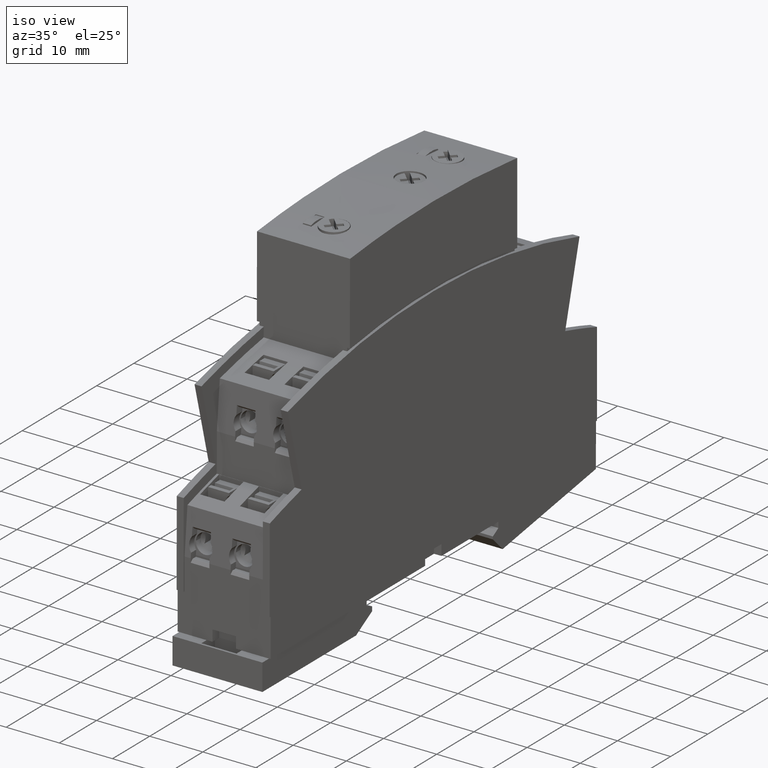
[diagram: clean part render]
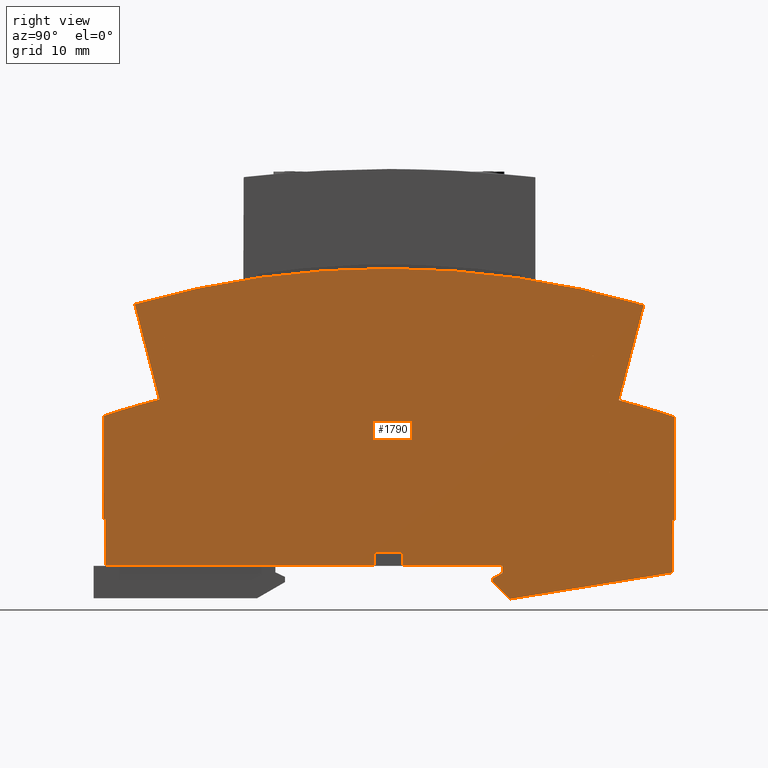
[diagram: tour spotlight — one face highlighted and labeled with its STEP entity id]
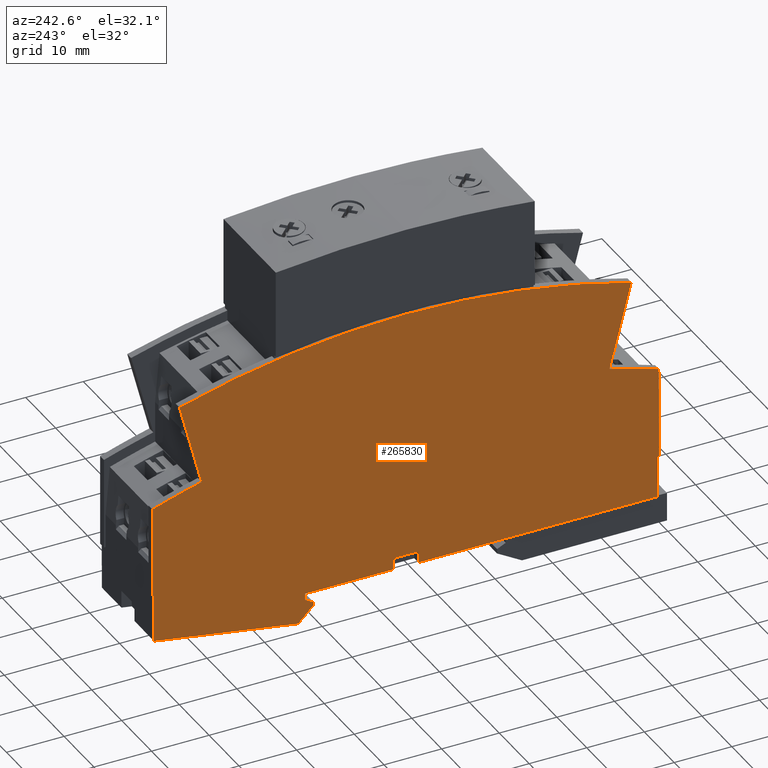
[diagram: tour spotlight — one face highlighted and labeled with its STEP entity id]
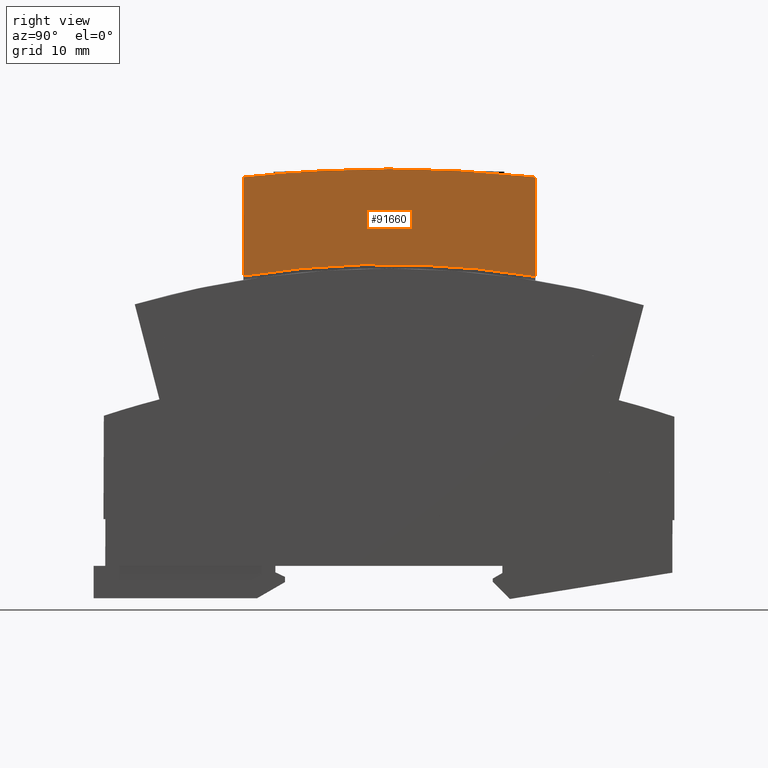
[diagram: tour spotlight — one face highlighted and labeled with its STEP entity id]
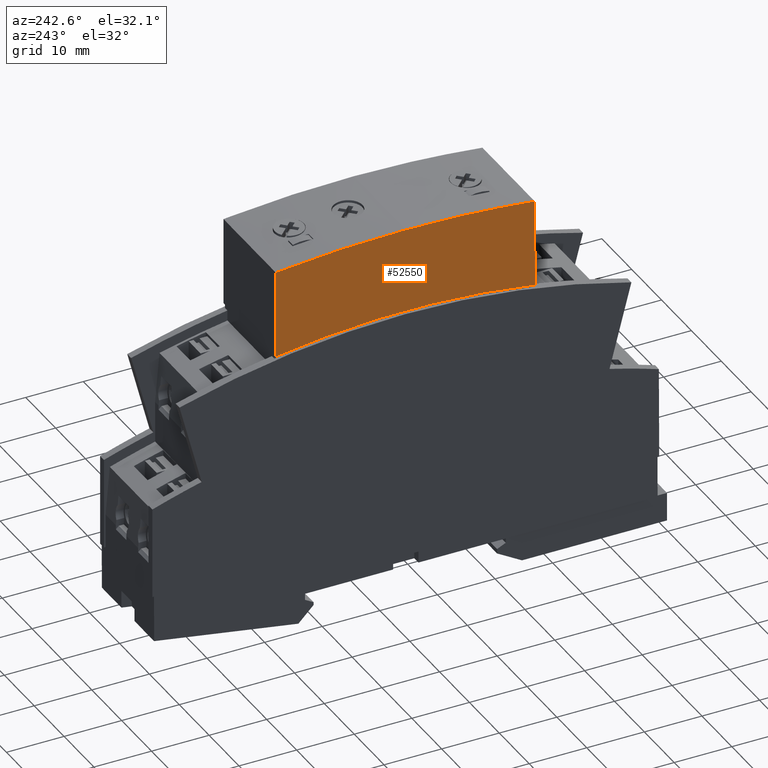
[diagram: tour spotlight — one face highlighted and labeled with its STEP entity id]
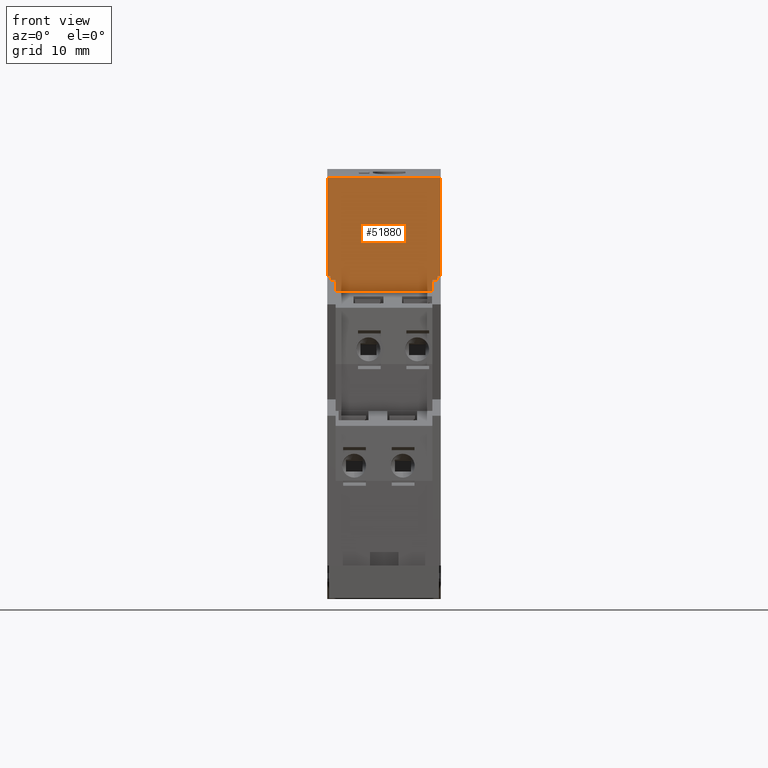
[diagram: tour spotlight — one face highlighted and labeled with its STEP entity id]
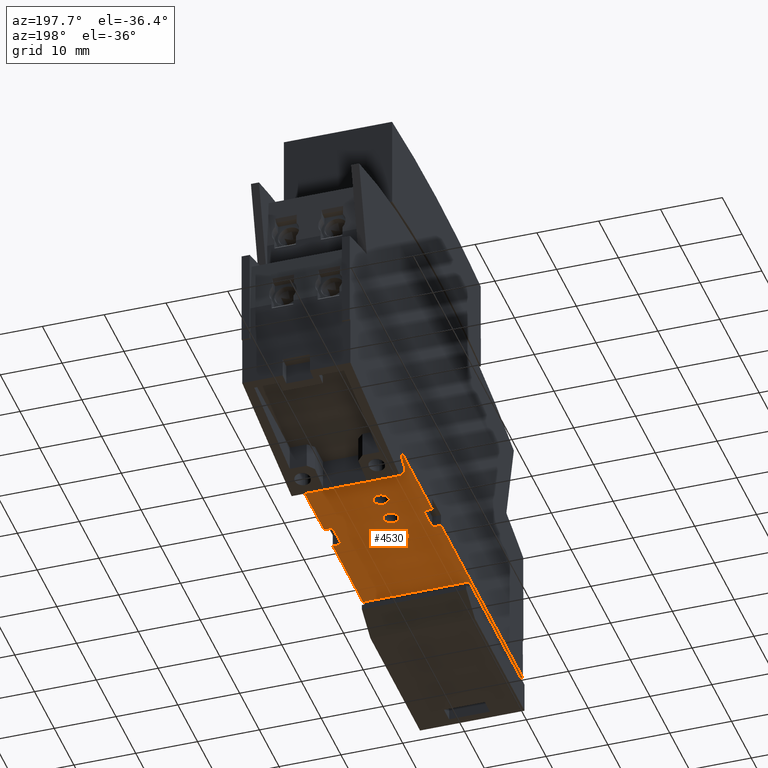
[diagram: tour spotlight — one face highlighted and labeled with its STEP entity id]
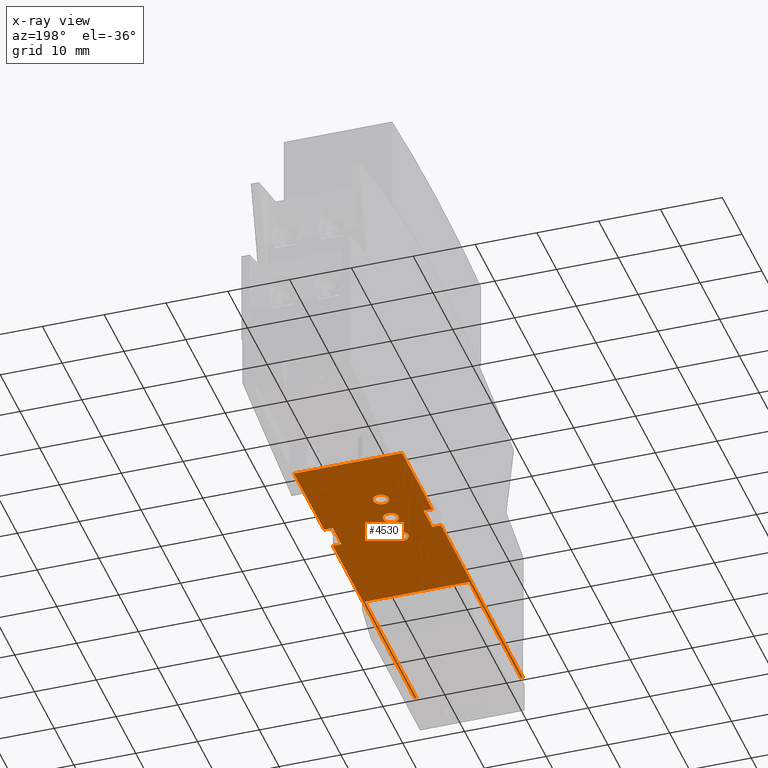
[diagram: x-ray of the same camera — body ghosted, this tour face saturated]
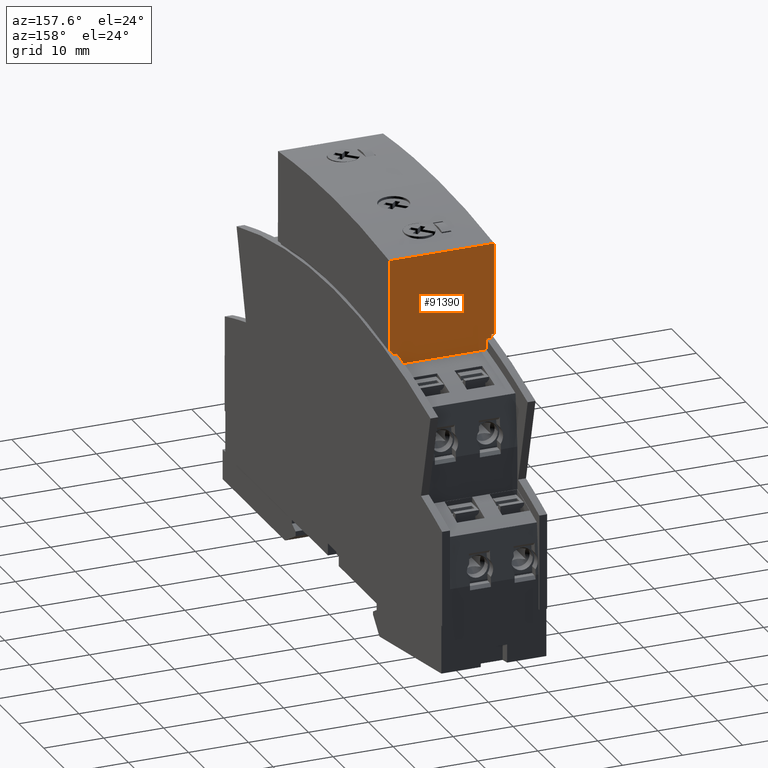
[diagram: tour spotlight — one face highlighted and labeled with its STEP entity id]
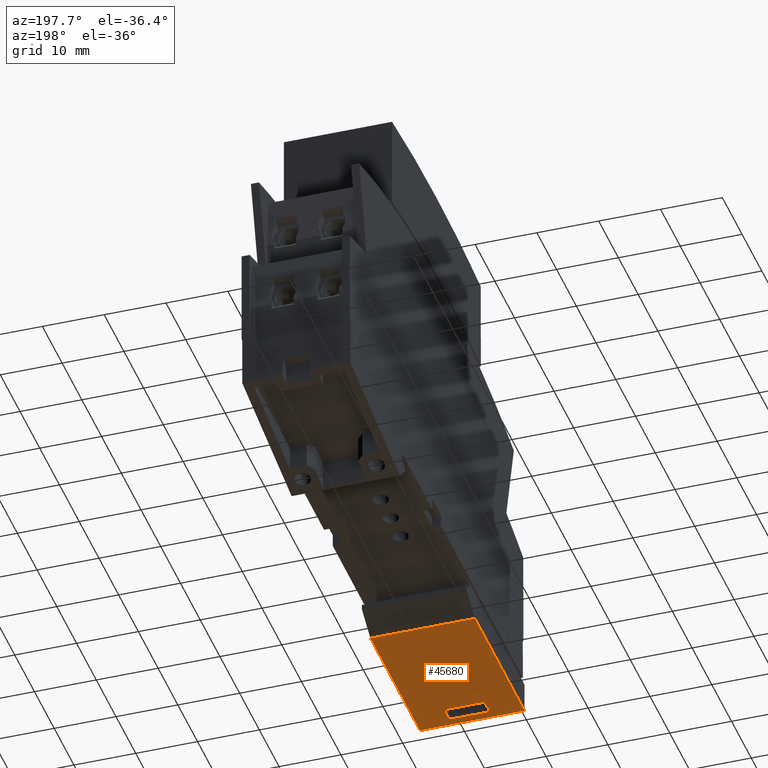
[diagram: tour spotlight — one face highlighted and labeled with its STEP entity id]
A machine part: a face-by-face anatomy tour. The part has 588 B-rep faces; the first image is the clean iso view, then the 8 largest visible faces are spotlighted one at a time (largest first), each with its STEP entity span.

Face 1 — right view, entity #1790. In plain terms, the highlighted planar face has unit normal (1, 0, 0).
Definition (entity closure, byte-faithful):
#10=CARTESIAN_POINT('',(-17.5000000000001,23.9099318984209,17.5));
#20=DIRECTION('',(0.,0.,1.));
#30=DIRECTION('',(1.,0.,0.));
#40=AXIS2_PLACEMENT_3D('',#10,#20,#30);
#50=PLANE('',#40);
#60=CARTESIAN_POINT('',(-17.6721459234697,-94.1562521937762,17.5));
#70=DIRECTION('',(-1.35525271563154E-20,-1.81496661283925E-18,1.));
#80=DIRECTION('',(-0.999998476913288,0.00174532836589861,
-1.03847938020941E-20));
#90=AXIS2_PLACEMENT_3D('',#60,#70,#80);
#100=CIRCLE('',#90,140.);
#110=CARTESIAN_POINT('',(21.7897716862871,40.1670780901354,17.5));
#120=VERTEX_POINT('',#110);
#130=CARTESIAN_POINT('',(-56.664947194767,40.3040075449925,17.5));
#140=VERTEX_POINT('',#130);
#150=EDGE_CURVE('',#120,#140,#100,.T.);
#160=ORIENTED_EDGE('',*,*,#150,.T.);
#170=CARTESIAN_POINT('',(17.5106393518926,23.9099318984209,17.5));
#180=DIRECTION('',(-0.25454536925544,-0.967060833138542,0.));
#190=VECTOR('',#180,1.);
#200=LINE('',#170,#190);
#210=CARTESIAN_POINT('',(17.9367983460244,25.5289818662912,17.5));
#220=VERTEX_POINT('',#210);
#230=EDGE_CURVE('',#120,#220,#200,.T.);
#240=ORIENTED_EDGE('',*,*,#230,.F.);
#250=CARTESIAN_POINT('',(-17.6995533497369,-109.859534773105,17.5));
#260=DIRECTION('',(-1.35525271563154E-20,-1.81496661283925E-18,1.));
#270=DIRECTION('',(0.999998476913288,-0.00174532836589864,
1.0384793802094E-20));
#280=AXIS2_PLACEMENT_3D('',#250,#260,#270);
#290=CIRCLE('',#280,140.);
#300=CARTESIAN_POINT('',(26.4956529806664,22.9816626673469,17.5));
#310=VERTEX_POINT('',#300);
#320=EDGE_CURVE('',#310,#220,#290,.T.);
#330=ORIENTED_EDGE('',*,*,#320,.T.);
#340=CARTESIAN_POINT('',(26.4956529806664,8.00000000000001,17.5));
#350=DIRECTION('',(4.94981659826532E-15,1.,0.));
#360=VECTOR('',#350,1.);
#370=LINE('',#340,#360);
#380=CARTESIAN_POINT('',(26.4956529806664,7.04749183856525,17.5));
#390=VERTEX_POINT('',#380);
#400=EDGE_CURVE('',#390,#310,#370,.T.);
#410=ORIENTED_EDGE('',*,*,#400,.T.);
#420=CARTESIAN_POINT('',(-17.5000000000001,7.04749183856528,17.5));
#430=DIRECTION('',(-1.,6.34475111338518E-16,0.));
#440=VECTOR('',#430,1.);
#450=LINE('',#420,#440);
#460=CARTESIAN_POINT('',(26.2046194104581,7.04749183856525,17.5));
#470=VERTEX_POINT('',#460);
#480=EDGE_CURVE('',#390,#470,#450,.T.);
#490=ORIENTED_EDGE('',*,*,#480,.F.);
#500=CARTESIAN_POINT('',(26.2340499502381,23.9099318984209,17.5));
#510=DIRECTION('',(0.00174532836589978,0.999998476913288,0.));
#520=VECTOR('',#510,1.);
#530=LINE('',#500,#520);
#540=CARTESIAN_POINT('',(26.1904821930108,-1.05252887462851,17.5));
#550=VERTEX_POINT('',#540);
#560=EDGE_CURVE('',#550,#470,#530,.T.);
#570=ORIENTED_EDGE('',*,*,#560,.T.);
#580=CARTESIAN_POINT('',(-17.5000000000001,-8.12826523943541,17.5));
#590=DIRECTION('',(0.98713832480494,0.159868470003616,0.));
#600=VECTOR('',#590,1.);
#610=LINE('',#580,#600);
#620=CARTESIAN_POINT('',(1.14413399908864,-5.10882095074802,17.5));
#630=VERTEX_POINT('',#620);
#640=EDGE_CURVE('',#630,#550,#610,.T.);
#650=ORIENTED_EDGE('',*,*,#640,.T.);
#660=CARTESIAN_POINT('',(-11.9190082123887,8.00000000000001,17.5));
#670=DIRECTION('',(0.705871570678684,-0.708339837724526,0.));
#680=VECTOR('',#670,1.);
#690=LINE('',#660,#680);
#700=CARTESIAN_POINT('',(-1.49502992345566,-2.46042849200951,17.5));
#710=VERTEX_POINT('',#700);
#720=EDGE_CURVE('',#710,#630,#690,.T.);
#730=ORIENTED_EDGE('',*,*,#720,.T.);
#740=CARTESIAN_POINT('',(-1.47677301308225,8.00000000000001,17.5));
#750=DIRECTION('',(-0.00174532836589892,-0.999998476913288,0.));
#760=VECTOR('',#750,1.);
#770=LINE('',#740,#760);
#780=CARTESIAN_POINT('',(-1.4941572592727,-1.96042925355286,17.5));
#790=VERTEX_POINT('',#780);
#800=EDGE_CURVE('',#790,#710,#770,.T.);
#810=ORIENTED_EDGE('',*,*,#800,.T.);
#820=CARTESIAN_POINT('',(-17.5000000000001,-11.164197038444,17.5));
#830=DIRECTION('',(-0.866896748935604,-0.498487739753828,0.));
#840=VECTOR('',#830,1.);
#850=LINE('',#820,#840);
#860=CARTESIAN_POINT('',(0.,-1.10125072286148,17.5));
#870=VERTEX_POINT('',#860);
#880=EDGE_CURVE('',#870,#790,#850,.T.);
#890=ORIENTED_EDGE('',*,*,#880,.T.);
#900=CARTESIAN_POINT('',(-1.06581410364015E-14,23.9099318984209,17.5));
#910=DIRECTION('',(4.41495656790506E-16,-1.,0.));
#920=VECTOR('',#910,1.);
#930=LINE('',#900,#920);
#940=CARTESIAN_POINT('',(0.,0.,17.5));
#950=VERTEX_POINT('',#940);
#960=EDGE_CURVE('',#950,#870,#930,.T.);
#970=ORIENTED_EDGE('',*,*,#960,.T.);
#980=CARTESIAN_POINT('',(-17.5000000000001,-7.105427357601E-15,17.5));
#990=DIRECTION('',(-1.,-4.41495656790506E-16,0.));
#1000=VECTOR('',#990,1.);
#1010=LINE('',#980,#1000);
#1020=CARTESIAN_POINT('',(-15.3078838033614,-7.105427357601E-15,17.5));
#1030=VERTEX_POINT('',#1020);
#1040=EDGE_CURVE('',#950,#1030,#1010,.T.);
#1050=ORIENTED_EDGE('',*,*,#1040,.F.);
#1060=CARTESIAN_POINT('',(-15.3078838033614,23.9099318984209,17.5));
#1070=DIRECTION('',(0.,1.,0.));
#1080=VECTOR('',#1070,1.);
#1090=LINE('',#1060,#1080);
#1100=CARTESIAN_POINT('',(-15.3078838033614,2.01990408026522,17.5));
#1110=VERTEX_POINT('',#1100);
#1120=EDGE_CURVE('',#1030,#1110,#1090,.T.);
#1130=ORIENTED_EDGE('',*,*,#1120,.F.);
#1140=CARTESIAN_POINT('',(-68.4771667671577,2.11270207935582,17.5));
#1150=DIRECTION('',(0.999998476913288,-0.00174532836589864,0.));
#1160=VECTOR('',#1150,1.);
#1170=LINE('',#1140,#1160);
#1180=CARTESIAN_POINT('',(-19.7043864450481,2.02757743272368,17.5));
#1190=VERTEX_POINT('',#1180);
#1200=EDGE_CURVE('',#1190,#1110,#1170,.T.);
#1210=ORIENTED_EDGE('',*,*,#1200,.T.);
#1220=CARTESIAN_POINT('',(-19.7043864450481,23.9099318984209,17.5));
#1230=DIRECTION('',(0.,-1.,0.));
#1240=VECTOR('',#1230,1.);
#1250=LINE('',#1220,#1240);
#1260=CARTESIAN_POINT('',(-19.7043864450481,-7.105427357601E-15,17.5));
#1270=VERTEX_POINT('',#1260);
#1280=EDGE_CURVE('',#1190,#1270,#1250,.T.);
#1290=ORIENTED_EDGE('',*,*,#1280,.F.);
#1300=CARTESIAN_POINT('',(-17.5000000000001,-7.105427357601E-15,17.5));
#1310=DIRECTION('',(-1.,-4.41495656790506E-16,0.));
#1320=VECTOR('',#1310,1.);
#1330=LINE('',#1300,#1320);
#1340=CARTESIAN_POINT('',(-61.2078139136722,-2.48689957516035E-14,17.5))
;
#1350=VERTEX_POINT('',#1340);
#1360=EDGE_CURVE('',#1270,#1350,#1330,.T.);
#1370=ORIENTED_EDGE('',*,*,#1360,.F.);
#1380=CARTESIAN_POINT('',(-61.1660831677436,23.9099318984209,17.5));
#1390=DIRECTION('',(-0.00174532836589909,-0.999998476913288,0.));
#1400=VECTOR('',#1390,1.);
#1410=LINE('',#1380,#1400);
#1420=CARTESIAN_POINT('',(-61.1952475294471,7.20000048754867,17.5));
#1430=VERTEX_POINT('',#1420);
#1440=EDGE_CURVE('',#1430,#1350,#1410,.T.);
#1450=ORIENTED_EDGE('',*,*,#1440,.T.);
#1460=CARTESIAN_POINT('',(-17.5000000000001,7.1237378164259,17.5));
#1470=DIRECTION('',(-0.999998476913288,0.00174532836589864,0.));
#1480=VECTOR('',#1470,1.);
#1490=LINE('',#1460,#1480);
#1500=CARTESIAN_POINT('',(-61.4864106383708,7.20050866355578,17.5));
#1510=VERTEX_POINT('',#1500);
#1520=EDGE_CURVE('',#1430,#1510,#1490,.T.);
#1530=ORIENTED_EDGE('',*,*,#1520,.F.);
#1540=CARTESIAN_POINT('',(-61.4836198758036,8.00000000000001,17.5));
#1550=DIRECTION('',(0.00349065141521945,0.999993907657791,0.));
#1560=VECTOR('',#1550,1.);
#1570=LINE('',#1540,#1560);
#1580=CARTESIAN_POINT('',(-61.4307881139738,23.1351234128359,17.5));
#1590=VERTEX_POINT('',#1580);
#1600=EDGE_CURVE('',#1510,#1590,#1570,.T.);
#1610=ORIENTED_EDGE('',*,*,#1600,.F.);
#1620=CARTESIAN_POINT('',(-17.6995533497371,-109.859534773105,17.5));
#1630=DIRECTION('',(1.35525271563154E-20,1.81496661283925E-18,-1.));
#1640=DIRECTION('',(-0.999998476913288,0.00174532836589864,
-1.0384793802094E-20));
#1650=AXIS2_PLACEMENT_3D('',#1620,#1630,#1640);
#1660=CIRCLE('',#1650,140.);
#1670=CARTESIAN_POINT('',(-52.8630938194364,25.6525511145968,17.5));
#1680=VERTEX_POINT('',#1670);
#1690=EDGE_CURVE('',#1590,#1680,#1660,.T.);
#1700=ORIENTED_EDGE('',*,*,#1690,.F.);
#1710=CARTESIAN_POINT('',(-52.4109078691584,23.9099318984209,17.5));
#1720=DIRECTION('',(0.25116814621214,-0.96794347062644,0.));
#1730=VECTOR('',#1720,1.);
#1740=LINE('',#1710,#1730);
#1750=EDGE_CURVE('',#140,#1680,#1740,.T.);
#1760=ORIENTED_EDGE('',*,*,#1750,.T.);
#1770=EDGE_LOOP('',(#1760,#1700,#1610,#1530,#1450,#1370,#1290,#1210,
#1130,#1050,#970,#890,#810,#730,#650,#570,#490,#410,#330,#240,#160));
#1780=FACE_OUTER_BOUND('',#1770,.T.);
#1790=ADVANCED_FACE('',(#1780),#50,.T.);

Face 2 — auxiliary view, entity #265830. In plain terms, the highlighted planar face has unit normal (1, 0, 0).
Definition (entity closure, byte-faithful):
#3450=CARTESIAN_POINT('',(0.,0.,0.));
#3460=VERTEX_POINT('',#3450);
#3490=CARTESIAN_POINT('',(-17.5000000000001,-7.105427357601E-15,0.));
#3500=DIRECTION('',(-1.,-4.41495656790506E-16,0.));
#3510=VECTOR('',#3500,1.);
#3520=LINE('',#3490,#3510);
#3530=CARTESIAN_POINT('',(-15.3078838033614,-7.105427357601E-15,0.));
#3540=VERTEX_POINT('',#3530);
#3550=EDGE_CURVE('',#3460,#3540,#3520,.T.);
#3680=CARTESIAN_POINT('',(-19.7043864450481,-7.105427357601E-15,0.));
#3690=VERTEX_POINT('',#3680);
#3720=CARTESIAN_POINT('',(-17.5000000000001,-7.105427357601E-15,0.));
#3730=DIRECTION('',(-1.,-4.41495656790506E-16,0.));
#3740=VECTOR('',#3730,1.);
#3750=LINE('',#3720,#3740);
#3760=CARTESIAN_POINT('',(-61.2078139136722,-2.48689957516035E-14,0.));
#3770=VERTEX_POINT('',#3760);
#3780=EDGE_CURVE('',#3690,#3770,#3750,.T.);
#7810=CARTESIAN_POINT('',(26.1904821930108,-1.05252887462851,0.));
#7820=VERTEX_POINT('',#7810);
#7850=CARTESIAN_POINT('',(-17.5000000000001,-8.12826523943541,0.));
#7860=DIRECTION('',(-0.98713832480494,-0.159868470003616,0.));
#7870=VECTOR('',#7860,1.);
#7880=LINE('',#7850,#7870);
#7890=CARTESIAN_POINT('',(1.14413399908865,-5.10882095074802,0.));
#7900=VERTEX_POINT('',#7890);
#7910=EDGE_CURVE('',#7820,#7900,#7880,.T.);
#14030=CARTESIAN_POINT('',(-17.5000000000001,7.1237378164259,0.));
#14040=DIRECTION('',(-0.999998476913288,0.00174532836589864,0.));
#14050=VECTOR('',#14040,1.);
#14060=LINE('',#14030,#14050);
#14070=CARTESIAN_POINT('',(26.4956529806663,7.04695083834929,0.));
#14080=VERTEX_POINT('',#14070);
#14090=CARTESIAN_POINT('',(26.2046193527746,7.04745878836913,0.));
#14100=VERTEX_POINT('',#14090);
#14110=EDGE_CURVE('',#14080,#14100,#14060,.T.);
#14510=CARTESIAN_POINT('',(26.2340499502381,23.9099318984209,0.));
#14520=DIRECTION('',(0.00174532836589978,0.999998476913288,0.));
#14530=VECTOR('',#14520,1.);
#14540=LINE('',#14510,#14530);
#14550=EDGE_CURVE('',#7820,#14100,#14540,.T.);
#39990=CARTESIAN_POINT('',(-52.8630938194363,25.6525511145968,0.));
#40000=VERTEX_POINT('',#39990);
#40050=CARTESIAN_POINT('',(-52.4109078691584,23.9099318984209,
3.5527136788005E-15));
#40060=DIRECTION('',(0.25116814621214,-0.96794347062644,0.));
#40070=VECTOR('',#40060,1.);
#40080=LINE('',#40050,#40070);
#40090=CARTESIAN_POINT('',(-56.664947194767,40.3040075449925,
3.5527136788005E-15));
#40100=VERTEX_POINT('',#40090);
#40110=EDGE_CURVE('',#40100,#40000,#40080,.T.);
#40520=CARTESIAN_POINT('',(-17.6721459234697,-94.1562521937762,0.));
#40530=DIRECTION('',(1.35525271563154E-20,1.81496661283925E-18,-1.));
#40540=DIRECTION('',(-0.999998476913288,0.00174532836589861,
-1.03847938020941E-20));
#40550=AXIS2_PLACEMENT_3D('',#40520,#40530,#40540);
#40560=CIRCLE('',#40550,140.);
#40570=CARTESIAN_POINT('',(21.7897716862872,40.1670780901354,0.));
#40580=VERTEX_POINT('',#40570);
#40590=EDGE_CURVE('',#40100,#40580,#40560,.T.);
#42140=CARTESIAN_POINT('',(-17.6995533497371,-109.859534773105,0.));
#42150=DIRECTION('',(1.35525271563154E-20,1.81496661283925E-18,-1.));
#42160=DIRECTION('',(-0.999998476913288,0.00174532836589864,
-1.0384793802094E-20));
#42170=AXIS2_PLACEMENT_3D('',#42140,#42150,#42160);
#42180=CIRCLE('',#42170,140.);
#42190=CARTESIAN_POINT('',(-61.4307881139738,23.1351234128359,0.));
#42200=VERTEX_POINT('',#42190);
#42210=EDGE_CURVE('',#42200,#40000,#42180,.T.);
#48610=CARTESIAN_POINT('',(-61.1660831677436,23.9099318984209,0.));
#48620=DIRECTION('',(-0.00174532836589909,-0.999998476913288,0.));
#48630=VECTOR('',#48620,1.);
#48640=LINE('',#48610,#48630);
#48650=CARTESIAN_POINT('',(-61.1952475294471,7.20000048754867,0.));
#48660=VERTEX_POINT('',#48650);
#48670=EDGE_CURVE('',#48660,#3770,#48640,.T.);
#94570=CARTESIAN_POINT('',(17.9367983460244,25.5289818662912,0.));
#94580=VERTEX_POINT('',#94570);
#94610=CARTESIAN_POINT('',(-17.6995533497369,-109.859534773105,0.));
#94620=DIRECTION('',(-1.35525271563154E-20,-1.81496661283925E-18,1.));
#94630=DIRECTION('',(0.999998476913288,-0.00174532836589864,
1.0384793802094E-20));
#94640=AXIS2_PLACEMENT_3D('',#94610,#94620,#94630);
#94650=CIRCLE('',#94640,140.);
#94660=CARTESIAN_POINT('',(26.4956529806664,22.9816626673468,0.));
#94670=VERTEX_POINT('',#94660);
#94680=EDGE_CURVE('',#94670,#94580,#94650,.T.);
#94930=CARTESIAN_POINT('',(26.4956529806663,8.00000000000001,
-3.5527136788005E-15));
#94940=DIRECTION('',(-4.94981659826532E-15,-1.,0.));
#94950=VECTOR('',#94940,1.);
#94960=LINE('',#94930,#94950);
#94970=EDGE_CURVE('',#94670,#14080,#94960,.T.);
#165010=CARTESIAN_POINT('',(17.5106393518926,23.9099318984209,0.));
#165020=DIRECTION('',(-0.25454536925544,-0.967060833138542,0.));
#165030=VECTOR('',#165020,1.);
#165040=LINE('',#165010,#165030);
#165050=EDGE_CURVE('',#40580,#94580,#165040,.T.);
#165560=CARTESIAN_POINT('',(-17.5000000000001,7.1237378164259,0.));
#165570=DIRECTION('',(0.999998476913288,-0.00174532836589864,0.));
#165580=VECTOR('',#165570,1.);
#165590=LINE('',#165560,#165580);
#165600=CARTESIAN_POINT('',(-61.4864106383708,7.20050866355578,0.));
#165610=VERTEX_POINT('',#165600);
#165620=EDGE_CURVE('',#165610,#48660,#165590,.T.);
#165780=CARTESIAN_POINT('',(-61.4836198758035,8.00000000000001,
-3.5527136788005E-15));
#165790=DIRECTION('',(-0.00349065141521945,-0.999993907657791,0.));
#165800=VECTOR('',#165790,1.);
#165810=LINE('',#165780,#165800);
#165820=EDGE_CURVE('',#42200,#165610,#165810,.T.);
#259050=CARTESIAN_POINT('',(-58.2127663847688,54.4556365684956,
-3.5527136788005E-15));
#259060=DIRECTION('',(0.705871570678684,-0.708339837724526,
-9.56634363049442E-21));
#259070=VECTOR('',#259060,1.);
#259080=LINE('',#259050,#259070);
#259090=CARTESIAN_POINT('',(-1.49502992345566,-2.46042849200951,0.));
#259100=VERTEX_POINT('',#259090);
#259110=EDGE_CURVE('',#259100,#7900,#259080,.T.);
#259360=CARTESIAN_POINT('',(-1.48550703178908,2.99578098034679,
-3.5527136788005E-15));
#259370=DIRECTION('',(0.00174532836589892,0.999998476913288,
-2.36536100755341E-23));
#259380=VECTOR('',#259370,1.);
#259390=LINE('',#259360,#259380);
#259400=CARTESIAN_POINT('',(-1.4941572592727,-1.96042925355286,0.));
#259410=VERTEX_POINT('',#259400);
#259420=EDGE_CURVE('',#259100,#259410,#259390,.T.);
#259670=CARTESIAN_POINT('',(-17.5000000000001,-11.164197038444,0.));
#259680=DIRECTION('',(0.866896748935604,0.498487739753828,0.));
#259690=VECTOR('',#259680,1.);
#259700=LINE('',#259670,#259690);
#259710=CARTESIAN_POINT('',(0.,-1.10125072286148,0.));
#259720=VERTEX_POINT('',#259710);
#259730=EDGE_CURVE('',#259410,#259720,#259700,.T.);
#259980=CARTESIAN_POINT('',(-1.06581410364015E-14,23.9099318984209,0.));
#259990=DIRECTION('',(4.41495656790506E-16,-1.,0.));
#260000=VECTOR('',#259990,1.);
#260010=LINE('',#259980,#260000);
#260020=EDGE_CURVE('',#3460,#259720,#260010,.T.);
#260260=CARTESIAN_POINT('',(-15.3078838033614,2.00000000000001,0.));
#260270=VERTEX_POINT('',#260260);
#260320=CARTESIAN_POINT('',(-15.3078838033614,23.9099318984209,0.));
#260330=DIRECTION('',(0.,-1.,0.));
#260340=VECTOR('',#260330,1.);
#260350=LINE('',#260320,#260340);
#260360=EDGE_CURVE('',#260270,#3540,#260350,.T.);
#260550=CARTESIAN_POINT('',(-68.4771667671577,2.00000000000001,
-3.5527136788005E-15));
#260560=DIRECTION('',(-1.,0.,1.35525271563162E-20));
#260570=VECTOR('',#260560,1.);
#260580=LINE('',#260550,#260570);
#260590=CARTESIAN_POINT('',(-19.7043864450481,2.00000000000001,0.));
#260600=VERTEX_POINT('',#260590);
#260610=EDGE_CURVE('',#260270,#260600,#260580,.T.);
#260860=CARTESIAN_POINT('',(-19.7043864450481,23.9099318984209,0.));
#260870=DIRECTION('',(0.,1.,0.));
#260880=VECTOR('',#260870,1.);
#260890=LINE('',#260860,#260880);
#260900=EDGE_CURVE('',#3690,#260600,#260890,.T.);
#265550=CARTESIAN_POINT('',(-17.5,23.9099318984209,0.));
#265560=DIRECTION('',(0.,0.,1.));
#265570=DIRECTION('',(1.,0.,0.));
#265580=AXIS2_PLACEMENT_3D('',#265550,#265560,#265570);
#265590=PLANE('',#265580);
#265600=ORIENTED_EDGE('',*,*,#40110,.F.);
#265610=ORIENTED_EDGE('',*,*,#42210,.T.);
#265620=ORIENTED_EDGE('',*,*,#165820,.F.);
#265630=ORIENTED_EDGE('',*,*,#165620,.F.);
#265640=ORIENTED_EDGE('',*,*,#48670,.F.);
#265650=ORIENTED_EDGE('',*,*,#3780,.T.);
#265660=ORIENTED_EDGE('',*,*,#260900,.F.);
#265670=ORIENTED_EDGE('',*,*,#260610,.T.);
#265680=ORIENTED_EDGE('',*,*,#260360,.F.);
#265690=ORIENTED_EDGE('',*,*,#3550,.T.);
#265700=ORIENTED_EDGE('',*,*,#260020,.F.);
#265710=ORIENTED_EDGE('',*,*,#259730,.T.);
#265720=ORIENTED_EDGE('',*,*,#259420,.T.);
#265730=ORIENTED_EDGE('',*,*,#259110,.F.);
#265740=ORIENTED_EDGE('',*,*,#7910,.T.);
#265750=ORIENTED_EDGE('',*,*,#14550,.F.);
#265760=ORIENTED_EDGE('',*,*,#14110,.T.);
#265770=ORIENTED_EDGE('',*,*,#94970,.T.);
#265780=ORIENTED_EDGE('',*,*,#94680,.F.);
#265790=ORIENTED_EDGE('',*,*,#165050,.T.);
#265800=ORIENTED_EDGE('',*,*,#40590,.T.);
#265810=EDGE_LOOP('',(#265800,#265790,#265780,#265770,#265760,#265750,
#265740,#265730,#265720,#265710,#265700,#265690,#265680,#265670,#265660,
#265650,#265640,#265630,#265620,#265610,#265600));
#265820=FACE_OUTER_BOUND('',#265810,.T.);
#265830=ADVANCED_FACE('',(#265820),#265590,.F.);

Face 3 — right view, entity #91660. In plain terms, the highlighted planar face has unit normal (1, -0, -0).
Definition (entity closure, byte-faithful):
#51450=CARTESIAN_POINT('',(-39.875644720519,59.9043663447041,17.5));
#51460=VERTEX_POINT('',#51450);
#51490=CARTESIAN_POINT('',(-40.0012895095302,23.9099318984209,17.5));
#51500=DIRECTION('',(-0.00349065141522469,-0.99999390765779,
-1.73472347597681E-18));
#51510=VECTOR('',#51500,1.);
#51520=LINE('',#51490,#51510);
#51530=CARTESIAN_POINT('',(-39.9288142634434,44.6724761692924,17.5));
#51540=VERTEX_POINT('',#51530);
#51550=EDGE_CURVE('',#51460,#51540,#51520,.T.);
#58160=CARTESIAN_POINT('',(-17.4845967167556,61.1580974394405,17.5));
#58170=VERTEX_POINT('',#58160);
#58200=CARTESIAN_POINT('',(154.280844406757,61.158091567358,17.5));
#58210=CARTESIAN_POINT('',(144.771787865585,61.1580918924406,17.5));
#58220=CARTESIAN_POINT('',(135.262731324412,61.1580922175233,17.5));
#58230=CARTESIAN_POINT('',(116.250572891361,61.158092867485,17.5));
#58240=CARTESIAN_POINT('',(106.747470999481,61.1580931923641,17.5));
#58250=CARTESIAN_POINT('',(59.0013804994831,61.1580948246423,17.5));
#58260=CARTESIAN_POINT('',(20.7583918913638,61.1580961320414,17.5));
#58270=CARTESIAN_POINT('',(-24.5764013397725,61.1580976818854,17.5));
#58280=CARTESIAN_POINT('',(-31.6631882343078,60.7809522745125,17.5));
#58290=CARTESIAN_POINT('',(-76.7419121579807,55.9693133706651,17.5));
#58300=CARTESIAN_POINT('',(-114.768891233554,51.9103676865408,17.5));
#58310=CARTESIAN_POINT('',(-162.245295418095,46.8428038003955,17.5));
#58320=CARTESIAN_POINT('',(-171.694720527062,45.8341855983744,17.5));
#58330=CARTESIAN_POINT('',(-190.599491760387,43.8163171935673,17.5));
#58340=CARTESIAN_POINT('',(-200.054837884744,42.8070669907813,17.5));
#58350=CARTESIAN_POINT('',(-209.510184009101,41.7978167879953,17.5));
#58360=B_SPLINE_CURVE_WITH_KNOTS('',3,(#58200,#58210,#58220,#58230,
#58240,#58250,#58260,#58270,#58280,#58290,#58300,#58310,#58320,#58330,
#58340,#58350),.UNSPECIFIED.,.F.,.F.,(4,2,2,2,2,2,2,4),(
-8.07342419662033,-6.73257274249117,-5.3925609405535,0.,1.,
6.39256310242424,7.73257544157093,9.07342743324572),.UNSPECIFIED.);
#58370=EDGE_CURVE('',#58170,#51460,#58360,.T.);
#76050=CARTESIAN_POINT('',(5.06898951839833,59.8870171728506,17.5));
#76060=VERTEX_POINT('',#76050);
#76090=CARTESIAN_POINT('',(163.605399881628,42.9650651599592,17.5));
#76100=CARTESIAN_POINT('',(154.160425600065,43.9732083441616,17.5));
#76110=CARTESIAN_POINT('',(144.715451318501,44.981351528364,17.5));
#76120=CARTESIAN_POINT('',(129.455876721617,46.6101369188872,17.5));
#76130=CARTESIAN_POINT('',(123.641276406296,47.230779125208,17.5));
#76140=CARTESIAN_POINT('',(79.7996970765649,51.9103672393031,17.5));
#76150=CARTESIAN_POINT('',(41.7727180621554,55.9693131470774,17.5));
#76160=CARTESIAN_POINT('',(-3.30600540006662,60.7809522745333,17.5));
#76170=CARTESIAN_POINT('',(-10.3927920939344,61.1580976818854,17.5));
#76180=CARTESIAN_POINT('',(-55.7275852877941,61.1580961320417,17.5));
#76190=CARTESIAN_POINT('',(-93.9705738588324,61.1580948246429,17.5));
#76200=CARTESIAN_POINT('',(-138.061192169791,61.1580933173333,17.5));
#76210=CARTESIAN_POINT('',(-143.908821909711,61.1580931174225,17.5));
#76220=CARTESIAN_POINT('',(-159.255077437568,61.1580925927858,17.5));
#76230=CARTESIAN_POINT('',(-168.753703225504,61.1580922680598,17.5));
#76240=CARTESIAN_POINT('',(-178.25232901344,61.1580919433338,17.5));
#76250=B_SPLINE_CURVE_WITH_KNOTS('',3,(#76090,#76100,#76110,#76120,
#76130,#76140,#76150,#76160,#76170,#76180,#76190,#76200,#76210,#76220,
#76230,#76240),.UNSPECIFIED.,.F.,.F.,(4,2,2,2,2,2,2,4),(-7.5565066212551
,-6.21712537290409,-5.39256339985572,0.,1.,6.39256093547402,
7.21712253170059,8.55650316795928),.UNSPECIFIED.);
#76260=CARTESIAN_POINT('',(3.7457390477458,60.0282590548518,17.5));
#76270=VERTEX_POINT('',#76260);
#76280=EDGE_CURVE('',#76060,#76270,#76250,.T.);
#76300=CARTESIAN_POINT('',(117.826676090974,47.8514213315287,17.5));
#76310=CARTESIAN_POINT('',(79.7996970765649,51.9103672393031,17.5));
#76320=CARTESIAN_POINT('',(41.7727180621554,55.9693131470774,17.5));
#76330=CARTESIAN_POINT('',(-3.3060054000667,60.7809522745333,17.5));
#76340=CARTESIAN_POINT('',(-10.3927920939345,61.1580976818854,17.5));
#76350=CARTESIAN_POINT('',(-55.727585287794,61.1580961320417,17.5));
#76360=CARTESIAN_POINT('',(-93.9705738588324,61.1580948246429,17.5));
#76370=CARTESIAN_POINT('',(-132.213562429871,61.158093517244,17.5));
#76380=B_SPLINE_CURVE_WITH_KNOTS('',3,(#76300,#76310,#76320,#76330,
#76340,#76350,#76360,#76370),.UNSPECIFIED.,.F.,.F.,(4,2,2,4),(
-5.39256339985572,0.,1.,6.39256093547402),.UNSPECIFIED.);
#76390=EDGE_CURVE('',#76270,#58170,#76380,.T.);
#90920=CARTESIAN_POINT('',(5.06898951839839,44.5939401063317,17.5));
#90930=VERTEX_POINT('',#90920);
#90960=CARTESIAN_POINT('',(5.06898951839838,23.9099318984209,17.5));
#90970=DIRECTION('',(2.90783022660612E-16,-1.,-1.81495672425259E-18));
#90980=VECTOR('',#90970,1.);
#90990=LINE('',#90960,#90980);
#91000=EDGE_CURVE('',#76060,#90930,#90990,.T.);
#91470=CARTESIAN_POINT('',(-68.4665739127965,8.11269272985266,17.5));
#91480=DIRECTION('',(-1.1179208139503E-20,-1.81495672425262E-18,1.));
#91490=DIRECTION('',(0.999998476913288,-0.00174532836589864,
8.01149565888308E-21));
#91500=AXIS2_PLACEMENT_3D('',#91470,#91480,#91490);
#91510=PLANE('',#91500);
#91520=CARTESIAN_POINT('',(-17.6710823859108,-93.5468906780054,17.5));
#91530=DIRECTION('',(-1.35525271563154E-20,-1.81496661283925E-18,1.));
#91540=DIRECTION('',(-0.999998476913288,0.00174532836589861,
-1.03847938020941E-20));
#91550=AXIS2_PLACEMENT_3D('',#91520,#91530,#91540);
#91560=CIRCLE('',#91550,140.);
#91570=EDGE_CURVE('',#90930,#51540,#91560,.T.);
#91580=ORIENTED_EDGE('',*,*,#91570,.F.);
#91590=ORIENTED_EDGE('',*,*,#51550,.T.);
#91600=ORIENTED_EDGE('',*,*,#58370,.T.);
#91610=ORIENTED_EDGE('',*,*,#76390,.T.);
#91620=ORIENTED_EDGE('',*,*,#76280,.T.);
#91630=ORIENTED_EDGE('',*,*,#91000,.F.);
#91640=EDGE_LOOP('',(#91630,#91620,#91610,#91600,#91590,#91580));
#91650=FACE_OUTER_BOUND('',#91640,.T.);
#91660=ADVANCED_FACE('',(#91650),#91510,.T.);

Face 4 — auxiliary view, entity #52550. In plain terms, the highlighted planar face has unit normal (1, -0, -0).
Definition (entity closure, byte-faithful):
#51290=CARTESIAN_POINT('',(-39.9288142634434,44.6724761692923,0.));
#51300=VERTEX_POINT('',#51290);
#51330=CARTESIAN_POINT('',(-40.0012895095302,23.9099318984209,0.));
#51340=DIRECTION('',(-0.00349065141522469,-0.99999390765779,
-1.73472347597681E-18));
#51350=VECTOR('',#51340,1.);
#51360=LINE('',#51330,#51350);
#51370=CARTESIAN_POINT('',(-39.875644720519,59.9043663447041,0.));
#51380=VERTEX_POINT('',#51370);
#51390=EDGE_CURVE('',#51380,#51300,#51360,.T.);
#51960=CARTESIAN_POINT('',(-68.4665739127965,8.11269272985266,0.));
#51970=DIRECTION('',(-1.1179208139503E-20,-1.81495672425262E-18,1.));
#51980=DIRECTION('',(0.999998476913288,-0.00174532836589864,
8.01149565888308E-21));
#51990=AXIS2_PLACEMENT_3D('',#51960,#51970,#51980);
#52000=PLANE('',#51990);
#52010=CARTESIAN_POINT('',(5.06898951839838,23.9099318984209,0.));
#52020=DIRECTION('',(2.90783022660612E-16,-1.,-1.81495672425259E-18));
#52030=VECTOR('',#52020,1.);
#52040=LINE('',#52010,#52030);
#52050=CARTESIAN_POINT('',(5.06898951839833,59.8870171728506,0.));
#52060=VERTEX_POINT('',#52050);
#52070=CARTESIAN_POINT('',(5.06898951839835,44.5939401063317,0.));
#52080=VERTEX_POINT('',#52070);
#52090=EDGE_CURVE('',#52060,#52080,#52040,.T.);
#52100=ORIENTED_EDGE('',*,*,#52090,.T.);
#52110=CARTESIAN_POINT('',(119.402776944417,47.6831905576138,
-7.105427357601E-15));
#52120=CARTESIAN_POINT('',(81.2915144690776,51.7511327626927,
-7.105427357601E-15));
#52130=CARTESIAN_POINT('',(43.180251993738,55.8190749677716,
-7.105427357601E-15));
#52140=CARTESIAN_POINT('',(4.62790602818089,59.9340978001843,
-3.5527136788005E-15));
#52150=CARTESIAN_POINT('',(4.18682253796339,59.981178427518,
-3.5527136788005E-15));
#52160=CARTESIAN_POINT('',(-3.30600540006661,60.7809522745333,
-3.5527136788005E-15));
#52170=CARTESIAN_POINT('',(-10.3927920939344,61.1580976818854,
-7.105427357601E-15));
#52180=CARTESIAN_POINT('',(-55.8123475149446,61.1580961291441,
-7.105427357601E-15));
#52190=CARTESIAN_POINT('',(-94.1400983131337,61.1580948188476,
-7.105427357601E-15));
#52200=CARTESIAN_POINT('',(-132.467849111323,61.1580935085511,
-3.5527136788005E-15));
#52210=B_SPLINE_CURVE_WITH_KNOTS('',3,(#52110,#52120,#52130,#52140,
#52150,#52160,#52170,#52180,#52190,#52200),.UNSPECIFIED.,.F.,.F.,(4,2,2,
2,4),(-5.46706510011362,-0.0625495568482094,0.,1.,6.40451307342179),
.UNSPECIFIED.);
#52220=CARTESIAN_POINT('',(-17.4845967167556,61.1580974394406,0.));
#52230=VERTEX_POINT('',#52220);
#52240=EDGE_CURVE('',#52060,#52230,#52210,.T.);
#52250=ORIENTED_EDGE('',*,*,#52240,.F.);
#52260=CARTESIAN_POINT('',(154.280844406757,61.158091567358,0.));
#52270=CARTESIAN_POINT('',(144.771787865585,61.1580918924406,0.));
#52280=CARTESIAN_POINT('',(135.262731324412,61.1580922175233,0.));
#52290=CARTESIAN_POINT('',(116.250572891361,61.158092867485,0.));
#52300=CARTESIAN_POINT('',(106.747470999481,61.1580931923641,0.));
#52310=CARTESIAN_POINT('',(59.0013804994831,61.1580948246423,0.));
#52320=CARTESIAN_POINT('',(20.7583918913638,61.1580961320414,0.));
#52330=CARTESIAN_POINT('',(-24.5764013397725,61.1580976818854,0.));
#52340=CARTESIAN_POINT('',(-31.6631882343078,60.7809522745125,0.));
#52350=CARTESIAN_POINT('',(-76.7419121579807,55.9693133706651,0.));
#52360=CARTESIAN_POINT('',(-114.768891233554,51.9103676865408,0.));
#52370=CARTESIAN_POINT('',(-162.245295418095,46.8428038003955,0.));
#52380=CARTESIAN_POINT('',(-171.694720527062,45.8341855983744,0.));
#52390=CARTESIAN_POINT('',(-190.599491760387,43.8163171935673,0.));
#52400=CARTESIAN_POINT('',(-200.054837884744,42.8070669907813,0.));
#52410=CARTESIAN_POINT('',(-209.510184009101,41.7978167879953,0.));
#52420=B_SPLINE_CURVE_WITH_KNOTS('',3,(#52260,#52270,#52280,#52290,
#52300,#52310,#52320,#52330,#52340,#52350,#52360,#52370,#52380,#52390,
#52400,#52410),.UNSPECIFIED.,.F.,.F.,(4,2,2,2,2,2,2,4),(
-8.07342419662033,-6.73257274249117,-5.3925609405535,0.,1.,
6.39256310242424,7.73257544157093,9.07342743324572),.UNSPECIFIED.);
#52430=EDGE_CURVE('',#52230,#51380,#52420,.T.);
#52440=ORIENTED_EDGE('',*,*,#52430,.F.);
#52450=ORIENTED_EDGE('',*,*,#51390,.F.);
#52460=CARTESIAN_POINT('',(-17.6710823859108,-93.5468906780054,0.));
#52470=DIRECTION('',(-1.35525271563154E-20,-1.81496661283925E-18,1.));
#52480=DIRECTION('',(-0.999998476913288,0.00174532836589814,
-1.03847938020949E-20));
#52490=AXIS2_PLACEMENT_3D('',#52460,#52470,#52480);
#52500=CIRCLE('',#52490,140.);
#52510=EDGE_CURVE('',#52080,#51300,#52500,.T.);
#52520=ORIENTED_EDGE('',*,*,#52510,.T.);
#52530=EDGE_LOOP('',(#52520,#52450,#52440,#52250,#52100));
#52540=FACE_OUTER_BOUND('',#52530,.T.);
#52550=ADVANCED_FACE('',(#52540),#52000,.F.);

Face 5 — front view, entity #51880. In plain terms, the highlighted planar face has unit normal (0, -1, 0.0035).
Definition (entity closure, byte-faithful):
#40470=CARTESIAN_POINT('',(-39.9309419432191,44.0629432884404,
1.29999999999989));
#40480=VERTEX_POINT('',#40470);
#40910=CARTESIAN_POINT('',(-39.9309419432191,44.0629432884405,0.5));
#40920=VERTEX_POINT('',#40910);
#40950=CARTESIAN_POINT('',(-39.9309419432191,44.0629432884404,0.5));
#40960=DIRECTION('',(1.35525271563154E-20,1.81496661283925E-18,-1.));
#40970=VECTOR('',#40960,1.);
#40980=LINE('',#40950,#40970);
#40990=EDGE_CURVE('',#40480,#40920,#40980,.T.);
#41180=CARTESIAN_POINT('',(-40.0012895095302,23.9099318984209,
1.29999999999998));
#41190=DIRECTION('',(0.00349065141522469,0.99999390765779,
6.93022028652734E-16));
#41200=VECTOR('',#41190,1.);
#41210=LINE('',#41180,#41200);
#41220=CARTESIAN_POINT('',(-39.937310847489,42.2383940250622,
1.29999999999999));
#41230=VERTEX_POINT('',#41220);
#41240=EDGE_CURVE('',#41230,#40480,#41210,.T.);
#50450=CARTESIAN_POINT('',(-39.937310847489,42.2383940250622,
16.2000000000001));
#50460=VERTEX_POINT('',#50450);
#50490=CARTESIAN_POINT('',(-40.0012895095302,23.9099318984209,16.2));
#50500=DIRECTION('',(0.00349065141522469,0.99999390765779,
1.03389519168218E-15));
#50510=VECTOR('',#50500,1.);
#50520=LINE('',#50490,#50510);
#50530=CARTESIAN_POINT('',(-39.9309419432191,44.0629432884404,16.2));
#50540=VERTEX_POINT('',#50530);
#50550=EDGE_CURVE('',#50460,#50540,#50520,.T.);
#51100=CARTESIAN_POINT('',(-39.889054061918,56.0628886061362,
-0.00099999999995859));
#51110=DIRECTION('',(-0.99999390765779,0.00349065141522469,
2.40432082593138E-18));
#51120=DIRECTION('',(-0.00349065141522469,-0.99999390765779,
-1.38158176435552E-15));
#51130=AXIS2_PLACEMENT_3D('',#51100,#51110,#51120);
#51140=PLANE('',#51130);
#51150=ORIENTED_EDGE('',*,*,#41240,.F.);
#51160=ORIENTED_EDGE('',*,*,#40990,.F.);
#51170=CARTESIAN_POINT('',(-40.0012895095302,23.9099318984209,0.5));
#51180=DIRECTION('',(0.00349065141522469,0.99999390765779,
1.73472347597681E-18));
#51190=VECTOR('',#51180,1.);
#51200=LINE('',#51170,#51190);
#51210=CARTESIAN_POINT('',(-39.9288142634434,44.6724761692923,0.5));
#51220=VERTEX_POINT('',#51210);
#51230=EDGE_CURVE('',#40920,#51220,#51200,.T.);
#51240=ORIENTED_EDGE('',*,*,#51230,.F.);
#51250=CARTESIAN_POINT('',(-39.9288142634434,44.6724761692924,0.5));
#51260=DIRECTION('',(-1.35525271563154E-20,-1.81496661283925E-18,1.));
#51270=VECTOR('',#51260,1.);
#51280=LINE('',#51250,#51270);
#51290=CARTESIAN_POINT('',(-39.9288142634434,44.6724761692923,0.));
#51300=VERTEX_POINT('',#51290);
#51310=EDGE_CURVE('',#51300,#51220,#51280,.T.);
#51320=ORIENTED_EDGE('',*,*,#51310,.T.);
#51330=CARTESIAN_POINT('',(-40.0012895095302,23.9099318984209,0.));
#51340=DIRECTION('',(-0.00349065141522469,-0.99999390765779,
-1.73472347597681E-18));
#51350=VECTOR('',#51340,1.);
#51360=LINE('',#51330,#51350);
#51370=CARTESIAN_POINT('',(-39.875644720519,59.9043663447041,0.));
#51380=VERTEX_POINT('',#51370);
#51390=EDGE_CURVE('',#51380,#51300,#51360,.T.);
#51400=ORIENTED_EDGE('',*,*,#51390,.T.);
#51410=CARTESIAN_POINT('',(-39.875644720519,59.9043663447041,
-3.5527136788005E-15));
#51420=DIRECTION('',(1.35525271560688E-20,-2.95822839457879E-31,1.));
#51430=VECTOR('',#51420,1.);
#51440=LINE('',#51410,#51430);
#51450=CARTESIAN_POINT('',(-39.875644720519,59.9043663447041,17.5));
#51460=VERTEX_POINT('',#51450);
#51470=EDGE_CURVE('',#51380,#51460,#51440,.T.);
#51480=ORIENTED_EDGE('',*,*,#51470,.F.);
#51490=CARTESIAN_POINT('',(-40.0012895095302,23.9099318984209,17.5));
#51500=DIRECTION('',(-0.00349065141522469,-0.99999390765779,
-1.73472347597681E-18));
#51510=VECTOR('',#51500,1.);
#51520=LINE('',#51490,#51510);
#51530=CARTESIAN_POINT('',(-39.9288142634434,44.6724761692924,17.5));
#51540=VERTEX_POINT('',#51530);
#51550=EDGE_CURVE('',#51460,#51540,#51520,.T.);
#51560=ORIENTED_EDGE('',*,*,#51550,.F.);
#51570=CARTESIAN_POINT('',(-39.9288142634434,44.6724761692924,17.));
#51580=DIRECTION('',(-1.35525271563154E-20,-1.81496661283925E-18,1.));
#51590=VECTOR('',#51580,1.);
#51600=LINE('',#51570,#51590);
#51610=CARTESIAN_POINT('',(-39.9288142634434,44.6724761692924,17.));
#51620=VERTEX_POINT('',#51610);
#51630=EDGE_CURVE('',#51620,#51540,#51600,.T.);
#51640=ORIENTED_EDGE('',*,*,#51630,.T.);
#51650=CARTESIAN_POINT('',(-40.0012895095302,23.9099318984209,17.));
#51660=DIRECTION('',(-0.00349065141522469,-0.99999390765779,
-1.73472347597681E-18));
#51670=VECTOR('',#51660,1.);
#51680=LINE('',#51650,#51670);
#51690=CARTESIAN_POINT('',(-39.9309419432191,44.0629432884404,17.));
#51700=VERTEX_POINT('',#51690);
#51710=EDGE_CURVE('',#51620,#51700,#51680,.T.);
#51720=ORIENTED_EDGE('',*,*,#51710,.F.);
#51730=CARTESIAN_POINT('',(-39.9309419432191,44.0629432884404,0.5));
#51740=DIRECTION('',(1.35525271563154E-20,1.81496661283925E-18,-1.));
#51750=VECTOR('',#51740,1.);
#51760=LINE('',#51730,#51750);
#51770=EDGE_CURVE('',#51700,#50540,#51760,.T.);
#51780=ORIENTED_EDGE('',*,*,#51770,.F.);
#51790=ORIENTED_EDGE('',*,*,#50550,.T.);
#51800=CARTESIAN_POINT('',(-39.937310847489,42.2383940250622,
1.29999999999999));
#51810=DIRECTION('',(1.18758417905695E-18,-6.93025158539903E-16,1.));
#51820=VECTOR('',#51810,1.);
#51830=LINE('',#51800,#51820);
#51840=EDGE_CURVE('',#41230,#50460,#51830,.T.);
#51850=ORIENTED_EDGE('',*,*,#51840,.T.);
#51860=EDGE_LOOP('',(#51850,#51790,#51780,#51720,#51640,#51560,#51480,
#51400,#51320,#51240,#51160,#51150));
#51870=FACE_OUTER_BOUND('',#51860,.T.);
#51880=ADVANCED_FACE('',(#51870),#51140,.T.);

Face 6 — auxiliary view, entity #4530. An x-ray twin of the same camera follows (body ghosted, this face saturated) — the face is partly hidden behind the body. In plain terms, the highlighted planar face has unit normal (0, -0, 1).
Definition (entity closure, byte-faithful):
#940=CARTESIAN_POINT('',(0.,0.,17.5));
#950=VERTEX_POINT('',#940);
#980=CARTESIAN_POINT('',(-17.5000000000001,-7.105427357601E-15,17.5));
#990=DIRECTION('',(-1.,-4.41495656790506E-16,0.));
#1000=VECTOR('',#990,1.);
#1010=LINE('',#980,#1000);
#1020=CARTESIAN_POINT('',(-15.3078838033614,-7.105427357601E-15,17.5));
#1030=VERTEX_POINT('',#1020);
#1040=EDGE_CURVE('',#950,#1030,#1010,.T.);
#1260=CARTESIAN_POINT('',(-19.7043864450481,-7.105427357601E-15,17.5));
#1270=VERTEX_POINT('',#1260);
#1300=CARTESIAN_POINT('',(-17.5000000000001,-7.105427357601E-15,17.5));
#1310=DIRECTION('',(-1.,-4.41495656790506E-16,0.));
#1320=VECTOR('',#1310,1.);
#1330=LINE('',#1300,#1320);
#1340=CARTESIAN_POINT('',(-61.2078139136722,-2.48689957516035E-14,17.5))
;
#1350=VERTEX_POINT('',#1340);
#1360=EDGE_CURVE('',#1270,#1350,#1330,.T.);
#1980=CARTESIAN_POINT('',(-15.3078838033614,-7.105427357601E-15,
1.40000000000001));
#1990=VERTEX_POINT('',#1980);
#2140=CARTESIAN_POINT('',(-19.7043864450481,-7.105427357601E-15,
1.40000000000001));
#2150=VERTEX_POINT('',#2140);
#2180=CARTESIAN_POINT('',(-17.5000000000001,-7.105427357601E-15,
1.40000000000001));
#2190=DIRECTION('',(-1.,-4.41495656790506E-16,2.46519032881566E-31));
#2200=VECTOR('',#2190,1.);
#2210=LINE('',#2180,#2200);
#2220=EDGE_CURVE('',#1990,#2150,#2210,.T.);
#2450=CARTESIAN_POINT('',(-35.,-1.4210854715202E-14,17.2));
#2460=VERTEX_POINT('',#2450);
#2930=CARTESIAN_POINT('',(-61.2078139136722,-2.48689957516035E-14,17.2))
;
#2940=VERTEX_POINT('',#2930);
#2970=CARTESIAN_POINT('',(-4.49999999999999,-2.1316282072803E-14,17.2));
#2980=DIRECTION('',(1.,-1.20370621524202E-35,0.));
#2990=VECTOR('',#2980,1.);
#3000=LINE('',#2970,#2990);
#3010=EDGE_CURVE('',#2940,#2460,#3000,.T.);
#3130=CARTESIAN_POINT('',(-63.,-2.8421709430404E-14,-3.5527136788005E-15
));
#3140=DIRECTION('',(-4.41495656790506E-16,1.,2.95828822839757E-31));
#3150=DIRECTION('',(-1.,-4.41495656790506E-16,1.35525271563162E-20));
#3160=AXIS2_PLACEMENT_3D('',#3130,#3140,#3150);
#3170=PLANE('',#3160);
#3180=CARTESIAN_POINT('',(-19.7043864450481,-7.105427357601E-15,17.5));
#3190=DIRECTION('',(2.47372159661619E-31,2.95828822839757E-31,-1.));
#3200=VECTOR('',#3190,1.);
#3210=LINE('',#3180,#3200);
#3220=CARTESIAN_POINT('',(-19.7043864450481,-7.105427357601E-15,16.1));
#3230=VERTEX_POINT('',#3220);
#3240=EDGE_CURVE('',#1270,#3230,#3210,.T.);
#3250=ORIENTED_EDGE('',*,*,#3240,.F.);
#3260=CARTESIAN_POINT('',(-17.5000000000001,-7.105427357601E-15,16.1));
#3270=DIRECTION('',(1.,4.41495656790506E-16,-2.46519032881566E-31));
#3280=VECTOR('',#3270,1.);
#3290=LINE('',#3260,#3280);
#3300=CARTESIAN_POINT('',(-15.3078838033614,-7.105427357601E-15,16.1));
#3310=VERTEX_POINT('',#3300);
#3320=EDGE_CURVE('',#3230,#3310,#3290,.T.);
#3330=ORIENTED_EDGE('',*,*,#3320,.F.);
#3340=CARTESIAN_POINT('',(-15.3078838033614,-7.105427357601E-15,17.5));
#3350=DIRECTION('',(-2.47372159661619E-31,-2.95828822839757E-31,1.));
#3360=VECTOR('',#3350,1.);
#3370=LINE('',#3340,#3360);
#3380=EDGE_CURVE('',#3310,#1030,#3370,.T.);
#3390=ORIENTED_EDGE('',*,*,#3380,.F.);
#3400=ORIENTED_EDGE('',*,*,#1040,.T.);
#3410=CARTESIAN_POINT('',(0.,0.,17.5));
#3420=DIRECTION('',(1.35525271560688E-20,-2.95822087141495E-31,1.));
#3430=VECTOR('',#3420,1.);
#3440=LINE('',#3410,#3430);
#3450=CARTESIAN_POINT('',(0.,0.,0.));
#3460=VERTEX_POINT('',#3450);
#3470=EDGE_CURVE('',#3460,#950,#3440,.T.);
#3480=ORIENTED_EDGE('',*,*,#3470,.T.);
#3490=CARTESIAN_POINT('',(-17.5000000000001,-7.105427357601E-15,0.));
#3500=DIRECTION('',(-1.,-4.41495656790506E-16,0.));
#3510=VECTOR('',#3500,1.);
#3520=LINE('',#3490,#3510);
#3530=CARTESIAN_POINT('',(-15.3078838033614,-7.105427357601E-15,0.));
#3540=VERTEX_POINT('',#3530);
#3550=EDGE_CURVE('',#3460,#3540,#3520,.T.);
#3560=ORIENTED_EDGE('',*,*,#3550,.F.);
#3570=CARTESIAN_POINT('',(-15.3078838033614,-7.105427357601E-15,17.5));
#3580=DIRECTION('',(-2.47372159661619E-31,-2.95828822839757E-31,1.));
#3590=VECTOR('',#3580,1.);
#3600=LINE('',#3570,#3590);
#3610=EDGE_CURVE('',#3540,#1990,#3600,.T.);
#3620=ORIENTED_EDGE('',*,*,#3610,.F.);
#3630=ORIENTED_EDGE('',*,*,#2220,.F.);
#3640=CARTESIAN_POINT('',(-19.7043864450481,-7.105427357601E-15,17.5));
#3650=DIRECTION('',(2.47372159661619E-31,2.95828822839757E-31,-1.));
#3660=VECTOR('',#3650,1.);
#3670=LINE('',#3640,#3660);
#3680=CARTESIAN_POINT('',(-19.7043864450481,-7.105427357601E-15,0.));
#3690=VERTEX_POINT('',#3680);
#3700=EDGE_CURVE('',#2150,#3690,#3670,.T.);
#3710=ORIENTED_EDGE('',*,*,#3700,.F.);
#3720=CARTESIAN_POINT('',(-17.5000000000001,-7.105427357601E-15,0.));
#3730=DIRECTION('',(-1.,-4.41495656790506E-16,0.));
#3740=VECTOR('',#3730,1.);
#3750=LINE('',#3720,#3740);
#3760=CARTESIAN_POINT('',(-61.2078139136722,-2.48689957516035E-14,0.));
#3770=VERTEX_POINT('',#3760);
#3780=EDGE_CURVE('',#3690,#3770,#3750,.T.);
#3790=ORIENTED_EDGE('',*,*,#3780,.F.);
#3800=CARTESIAN_POINT('',(-61.2078139136722,-2.48689957516035E-14,17.5))
;
#3810=DIRECTION('',(-2.39714248880055E-18,2.94667730295752E-31,-1.));
#3820=VECTOR('',#3810,1.);
#3830=LINE('',#3800,#3820);
#3840=CARTESIAN_POINT('',(-61.2078139136722,-2.8421709430404E-14,
0.299999999999994));
#3850=VERTEX_POINT('',#3840);
#3860=EDGE_CURVE('',#3850,#3770,#3830,.T.);
#3870=ORIENTED_EDGE('',*,*,#3860,.T.);
#3880=CARTESIAN_POINT('',(-4.49999999999997,0.,0.299999999999994));
#3890=DIRECTION('',(-1.,-4.41495656790506E-16,1.35525271560688E-20));
#3900=VECTOR('',#3890,1.);
#3910=LINE('',#3880,#3900);
#3920=CARTESIAN_POINT('',(-35.,-1.4210854715202E-14,0.299999999999994));
#3930=VERTEX_POINT('',#3920);
#3940=EDGE_CURVE('',#3930,#3850,#3910,.T.);
#3950=ORIENTED_EDGE('',*,*,#3940,.T.);
#3960=CARTESIAN_POINT('',(-35.,-1.4210854715202E-14,17.5));
#3970=DIRECTION('',(-1.35525271560688E-20,2.95822087141495E-31,-1.));
#3980=VECTOR('',#3970,1.);
#3990=LINE('',#3960,#3980);
#4000=EDGE_CURVE('',#2460,#3930,#3990,.T.);
#4010=ORIENTED_EDGE('',*,*,#4000,.T.);
#4020=ORIENTED_EDGE('',*,*,#3010,.T.);
#4030=EDGE_CURVE('',#1350,#2940,#3830,.T.);
#4040=ORIENTED_EDGE('',*,*,#4030,.T.);
#4050=ORIENTED_EDGE('',*,*,#1360,.T.);
#4060=EDGE_LOOP('',(#4050,#4040,#4020,#4010,#3950,#3870,#3790,#3710,
#3630,#3620,#3560,#3480,#3400,#3390,#3330,#3250));
#4070=FACE_OUTER_BOUND('',#4060,.T.);
#4080=CARTESIAN_POINT('',(-10.5043999342993,-7.105427357601E-15,
6.74999798250523));
#4090=DIRECTION('',(0.,-1.,0.));
#4100=DIRECTION('',(2.47372159661619E-31,0.,-1.));
#4110=AXIS2_PLACEMENT_3D('',#4080,#4090,#4100);
#4120=CIRCLE('',#4110,1.24999835083563);
#4130=CARTESIAN_POINT('',(-10.5043999342993,-7.105427357601E-15,
5.4999996316696));
#4140=VERTEX_POINT('',#4130);
#4150=CARTESIAN_POINT('',(-10.5043999342993,-7.105427357601E-15,
7.99999633334086));
#4160=VERTEX_POINT('',#4150);
#4170=EDGE_CURVE('',#4140,#4160,#4120,.T.);
#4180=ORIENTED_EDGE('',*,*,#4170,.F.);
#4190=EDGE_CURVE('',#4160,#4140,#4120,.T.);
#4200=ORIENTED_EDGE('',*,*,#4190,.F.);
#4210=EDGE_LOOP('',(#4200,#4180));
#4220=FACE_BOUND('',#4210,.T.);
#4230=CARTESIAN_POINT('',(-15.5043907424567,-7.105427357601E-15,
6.75000027873531));
#4240=DIRECTION('',(0.,-1.,0.));
#4250=DIRECTION('',(2.47372159661619E-31,0.,-1.));
#4260=AXIS2_PLACEMENT_3D('',#4230,#4240,#4250);
#4270=CIRCLE('',#4260,1.25000039612564);
#4280=CARTESIAN_POINT('',(-15.5043907424567,-7.105427357601E-15,
5.49999988260967));
#4290=VERTEX_POINT('',#4280);
#4300=CARTESIAN_POINT('',(-15.5043907424567,-7.105427357601E-15,
8.00000067486095));
#4310=VERTEX_POINT('',#4300);
#4320=EDGE_CURVE('',#4290,#4310,#4270,.T.);
#4330=ORIENTED_EDGE('',*,*,#4320,.F.);
#4340=EDGE_CURVE('',#4310,#4290,#4270,.T.);
#4350=ORIENTED_EDGE('',*,*,#4340,.F.);
#4360=EDGE_LOOP('',(#4350,#4330));
#4370=FACE_BOUND('',#4360,.T.);
#4380=CARTESIAN_POINT('',(-20.5043817354747,-1.06581410364015E-14,
6.7500006715901));
#4390=DIRECTION('',(0.,-1.,0.));
#4400=DIRECTION('',(2.47372159661619E-31,0.,-1.));
#4410=AXIS2_PLACEMENT_3D('',#4380,#4390,#4400);
#4420=CIRCLE('',#4410,1.25000166008397);
#4430=CARTESIAN_POINT('',(-20.5043817354747,-1.06581410364015E-14,
5.49999901150612));
#4440=VERTEX_POINT('',#4430);
#4450=CARTESIAN_POINT('',(-20.5043817354747,-1.06581410364015E-14,
8.00000233167407));
#4460=VERTEX_POINT('',#4450);
#4470=EDGE_CURVE('',#4440,#4460,#4420,.T.);
#4480=ORIENTED_EDGE('',*,*,#4470,.F.);
#4490=EDGE_CURVE('',#4460,#4440,#4420,.T.);
#4500=ORIENTED_EDGE('',*,*,#4490,.F.);
#4510=EDGE_LOOP('',(#4500,#4480));
#4520=FACE_BOUND('',#4510,.T.);
#4530=ADVANCED_FACE('',(#4070,#4220,#4370,#4520),#3170,.F.);

Face 7 — auxiliary view, entity #91390. In plain terms, the highlighted planar face has unit normal (-0, -1, -0).
Definition (entity closure, byte-faithful):
#40740=CARTESIAN_POINT('',(5.06898951839836,43.984403511974,
1.29999999999989));
#40750=VERTEX_POINT('',#40740);
#40780=CARTESIAN_POINT('',(5.06898951839837,43.9844035119741,0.5));
#40790=DIRECTION('',(1.35525271563154E-20,1.81496661283925E-18,-1.));
#40800=VECTOR('',#40790,1.);
#40810=LINE('',#40780,#40800);
#40820=CARTESIAN_POINT('',(5.06898951839836,43.984403511974,0.5));
#40830=VERTEX_POINT('',#40820);
#40840=EDGE_CURVE('',#40750,#40830,#40810,.T.);
#52010=CARTESIAN_POINT('',(5.06898951839838,23.9099318984209,0.));
#52020=DIRECTION('',(2.90783022660612E-16,-1.,-1.81495672425259E-18));
#52030=VECTOR('',#52020,1.);
#52040=LINE('',#52010,#52030);
#52050=CARTESIAN_POINT('',(5.06898951839833,59.8870171728506,0.));
#52060=VERTEX_POINT('',#52050);
#52070=CARTESIAN_POINT('',(5.06898951839835,44.5939401063317,0.));
#52080=VERTEX_POINT('',#52070);
#52090=EDGE_CURVE('',#52060,#52080,#52040,.T.);
#52740=CARTESIAN_POINT('',(5.06898951839835,44.5939401063317,0.5));
#52750=VERTEX_POINT('',#52740);
#52780=CARTESIAN_POINT('',(5.06898951839849,44.5939401063318,0.5));
#52790=DIRECTION('',(-1.35525271563154E-20,-1.81496661283925E-18,1.));
#52800=VECTOR('',#52790,1.);
#52810=LINE('',#52780,#52800);
#52820=EDGE_CURVE('',#52080,#52750,#52810,.T.);
#53010=CARTESIAN_POINT('',(5.06898951839838,23.9099318984209,0.5));
#53020=DIRECTION('',(-2.90783022660612E-16,1.,1.81496404571986E-18));
#53030=VECTOR('',#53020,1.);
#53040=LINE('',#53010,#53030);
#53050=EDGE_CURVE('',#40830,#52750,#53040,.T.);
#76010=CARTESIAN_POINT('',(5.06898951839837,59.8870171728506,
-3.5527136788005E-15));
#76020=DIRECTION('',(1.35525271560688E-20,-2.95822839457879E-31,1.));
#76030=VECTOR('',#76020,1.);
#76040=LINE('',#76010,#76030);
#76050=CARTESIAN_POINT('',(5.06898951839833,59.8870171728506,17.5));
#76060=VERTEX_POINT('',#76050);
#76070=EDGE_CURVE('',#52060,#76060,#76040,.T.);
#90730=CARTESIAN_POINT('',(5.06898951839837,55.9844219378886,
-0.00099999999995859));
#90740=DIRECTION('',(-1.,-2.90783022660612E-16,-2.40476163490844E-18));
#90750=DIRECTION('',(2.90783022660612E-16,-1.,-1.38158173568611E-15));
#90760=AXIS2_PLACEMENT_3D('',#90730,#90740,#90750);
#90770=PLANE('',#90760);
#90780=CARTESIAN_POINT('',(5.06898951839838,23.9099318984209,17.));
#90790=DIRECTION('',(2.90783022660612E-16,-1.,-1.81496404571986E-18));
#90800=VECTOR('',#90790,1.);
#90810=LINE('',#90780,#90800);
#90820=CARTESIAN_POINT('',(5.06898951839839,44.5939401063317,17.));
#90830=VERTEX_POINT('',#90820);
#90840=CARTESIAN_POINT('',(5.06898951839837,43.9844035119741,17.));
#90850=VERTEX_POINT('',#90840);
#90860=EDGE_CURVE('',#90830,#90850,#90810,.T.);
#90870=ORIENTED_EDGE('',*,*,#90860,.T.);
#90880=CARTESIAN_POINT('',(5.06898951839839,44.5939401063317,17.));
#90890=DIRECTION('',(-1.35525271563154E-20,-1.81496661283925E-18,1.));
#90900=VECTOR('',#90890,1.);
#90910=LINE('',#90880,#90900);
#90920=CARTESIAN_POINT('',(5.06898951839839,44.5939401063317,17.5));
#90930=VERTEX_POINT('',#90920);
#90940=EDGE_CURVE('',#90830,#90930,#90910,.T.);
#90950=ORIENTED_EDGE('',*,*,#90940,.F.);
#90960=CARTESIAN_POINT('',(5.06898951839838,23.9099318984209,17.5));
#90970=DIRECTION('',(2.90783022660612E-16,-1.,-1.81495672425259E-18));
#90980=VECTOR('',#90970,1.);
#90990=LINE('',#90960,#90980);
#91000=EDGE_CURVE('',#76060,#90930,#90990,.T.);
#91010=ORIENTED_EDGE('',*,*,#91000,.T.);
#91020=ORIENTED_EDGE('',*,*,#76070,.T.);
#91030=ORIENTED_EDGE('',*,*,#52090,.F.);
#91040=ORIENTED_EDGE('',*,*,#52820,.F.);
#91050=ORIENTED_EDGE('',*,*,#53050,.T.);
#91060=ORIENTED_EDGE('',*,*,#40840,.T.);
#91070=CARTESIAN_POINT('',(5.06898951839838,23.9099318984209,
1.29999999999997));
#91080=DIRECTION('',(-2.90783022660612E-16,1.,6.93025192189247E-16));
#91090=VECTOR('',#91080,1.);
#91100=LINE('',#91070,#91090);
#91110=CARTESIAN_POINT('',(5.06898951839838,42.1598645076265,
1.29999999999999));
#91120=VERTEX_POINT('',#91110);
#91130=EDGE_CURVE('',#91120,#40750,#91100,.T.);
#91140=ORIENTED_EDGE('',*,*,#91130,.T.);
#91150=CARTESIAN_POINT('',(5.06898951839838,42.1598645076265,
1.29999999999999));
#91160=DIRECTION('',(1.18758417905695E-18,-6.93025158539903E-16,1.));
#91170=VECTOR('',#91160,1.);
#91180=LINE('',#91150,#91170);
#91190=CARTESIAN_POINT('',(5.06898951839838,42.1598645076265,
16.2000000000001));
#91200=VERTEX_POINT('',#91190);
#91210=EDGE_CURVE('',#91120,#91200,#91180,.T.);
#91220=ORIENTED_EDGE('',*,*,#91210,.F.);
#91230=CARTESIAN_POINT('',(5.06898951839838,23.9099318984209,16.2));
#91240=DIRECTION('',(-2.90783022660612E-16,1.,1.03378938233785E-15));
#91250=VECTOR('',#91240,1.);
#91260=LINE('',#91230,#91250);
#91270=CARTESIAN_POINT('',(5.06898951839837,43.984403511974,
16.2000000000001));
#91280=VERTEX_POINT('',#91270);
#91290=EDGE_CURVE('',#91200,#91280,#91260,.T.);
#91300=ORIENTED_EDGE('',*,*,#91290,.F.);
#91310=CARTESIAN_POINT('',(5.06898951839837,43.9844035119741,0.5));
#91320=DIRECTION('',(1.35525271563154E-20,1.81496661283925E-18,-1.));
#91330=VECTOR('',#91320,1.);
#91340=LINE('',#91310,#91330);
#91350=EDGE_CURVE('',#90850,#91280,#91340,.T.);
#91360=ORIENTED_EDGE('',*,*,#91350,.T.);
#91370=EDGE_LOOP('',(#91360,#91300,#91220,#91140,#91060,#91050,#91040,
#91030,#91020,#91010,#90950,#90870));
#91380=FACE_OUTER_BOUND('',#91370,.T.);
#91390=ADVANCED_FACE('',(#91380),#90770,.F.);

Face 8 — auxiliary view, entity #45680. In plain terms, the highlighted planar face has unit normal (0, -0, 1).
Definition (entity closure, byte-faithful):
#2690=CARTESIAN_POINT('',(-37.8301270189222,-5.00000000000002,17.2));
#2700=VERTEX_POINT('',#2690);
#2730=CARTESIAN_POINT('',(-68.4771667671577,-5.00000000000003,17.2));
#2740=DIRECTION('',(1.,4.41495656790506E-16,0.));
#2750=VECTOR('',#2740,1.);
#2760=LINE('',#2730,#2750);
#2770=CARTESIAN_POINT('',(-63.,-5.00000000000003,17.2));
#2780=VERTEX_POINT('',#2770);
#2790=EDGE_CURVE('',#2780,#2700,#2760,.T.);
#44390=CARTESIAN_POINT('',(-59.,-5.00000000000003,5.44999999999999));
#44400=VERTEX_POINT('',#44390);
#44430=CARTESIAN_POINT('',(-68.4771667671577,-5.00000000000003,
5.44999999999999));
#44440=DIRECTION('',(-1.,-4.41495656790506E-16,-1.09624546818623E-20));
#44450=VECTOR('',#44440,1.);
#44460=LINE('',#44430,#44450);
#44470=CARTESIAN_POINT('',(-61.6,-5.00000000000002,5.44999999999999));
#44480=VERTEX_POINT('',#44470);
#44490=EDGE_CURVE('',#44400,#44480,#44460,.T.);
#45000=CARTESIAN_POINT('',(-59.,-5.00000000000003,12.05));
#45010=VERTEX_POINT('',#45000);
#45040=CARTESIAN_POINT('',(-59.,-5.00000000000003,0.));
#45050=DIRECTION('',(5.75781208968918E-21,2.95831565515236E-31,-1.));
#45060=VECTOR('',#45050,1.);
#45070=LINE('',#45040,#45060);
#45080=EDGE_CURVE('',#45010,#44400,#45070,.T.);
#45200=CARTESIAN_POINT('',(-63.,-5.00000000000003,-3.5527136788005E-15))
;
#45210=DIRECTION('',(-4.41495656790506E-16,1.,2.95828822839757E-31));
#45220=DIRECTION('',(-1.,-4.41495656790506E-16,1.35525271563162E-20));
#45230=AXIS2_PLACEMENT_3D('',#45200,#45210,#45220);
#45240=PLANE('',#45230);
#45250=CARTESIAN_POINT('',(-61.6,-5.00000000000003,0.));
#45260=DIRECTION('',(2.47372159661619E-31,2.95828822839757E-31,-1.));
#45270=VECTOR('',#45260,1.);
#45280=LINE('',#45250,#45270);
#45290=CARTESIAN_POINT('',(-61.6,-5.00000000000002,12.05));
#45300=VERTEX_POINT('',#45290);
#45310=EDGE_CURVE('',#45300,#44480,#45280,.T.);
#45320=ORIENTED_EDGE('',*,*,#45310,.F.);
#45330=ORIENTED_EDGE('',*,*,#44490,.T.);
#45340=ORIENTED_EDGE('',*,*,#45080,.T.);
#45350=CARTESIAN_POINT('',(-68.4771667671577,-5.00000000000003,12.05));
#45360=DIRECTION('',(1.,4.41495656790506E-16,1.09624546818623E-20));
#45370=VECTOR('',#45360,1.);
#45380=LINE('',#45350,#45370);
#45390=EDGE_CURVE('',#45300,#45010,#45380,.T.);
#45400=ORIENTED_EDGE('',*,*,#45390,.T.);
#45410=EDGE_LOOP('',(#45400,#45340,#45330,#45320));
#45420=FACE_BOUND('',#45410,.T.);
#45430=CARTESIAN_POINT('',(-37.8301270189222,-5.00000000000002,0.));
#45440=DIRECTION('',(1.35525271560688E-20,-2.95822839457882E-31,1.));
#45450=VECTOR('',#45440,1.);
#45460=LINE('',#45430,#45450);
#45470=CARTESIAN_POINT('',(-37.8301270189222,-5.00000000000001,
0.299999999999994));
#45480=VERTEX_POINT('',#45470);
#45490=EDGE_CURVE('',#45480,#2700,#45460,.T.);
#45500=ORIENTED_EDGE('',*,*,#45490,.T.);
#45510=CARTESIAN_POINT('',(-68.4771667671577,-5.00000000000003,
0.299999999999994));
#45520=DIRECTION('',(-1.,-4.41495656790506E-16,1.35525271560688E-20));
#45530=VECTOR('',#45520,1.);
#45540=LINE('',#45510,#45530);
#45550=CARTESIAN_POINT('',(-63.,-5.00000000000003,0.299999999999994));
#45560=VERTEX_POINT('',#45550);
#45570=EDGE_CURVE('',#45480,#45560,#45540,.T.);
#45580=ORIENTED_EDGE('',*,*,#45570,.F.);
#45590=CARTESIAN_POINT('',(-63.,-5.00000000000003,0.));
#45600=DIRECTION('',(1.35525271560688E-20,-2.95822087141495E-31,1.));
#45610=VECTOR('',#45600,1.);
#45620=LINE('',#45590,#45610);
#45630=EDGE_CURVE('',#45560,#2780,#45620,.T.);
#45640=ORIENTED_EDGE('',*,*,#45630,.F.);
#45650=ORIENTED_EDGE('',*,*,#2790,.F.);
#45660=EDGE_LOOP('',(#45650,#45640,#45580,#45500));
#45670=FACE_OUTER_BOUND('',#45660,.T.);
#45680=ADVANCED_FACE('',(#45420,#45670),#45240,.F.);